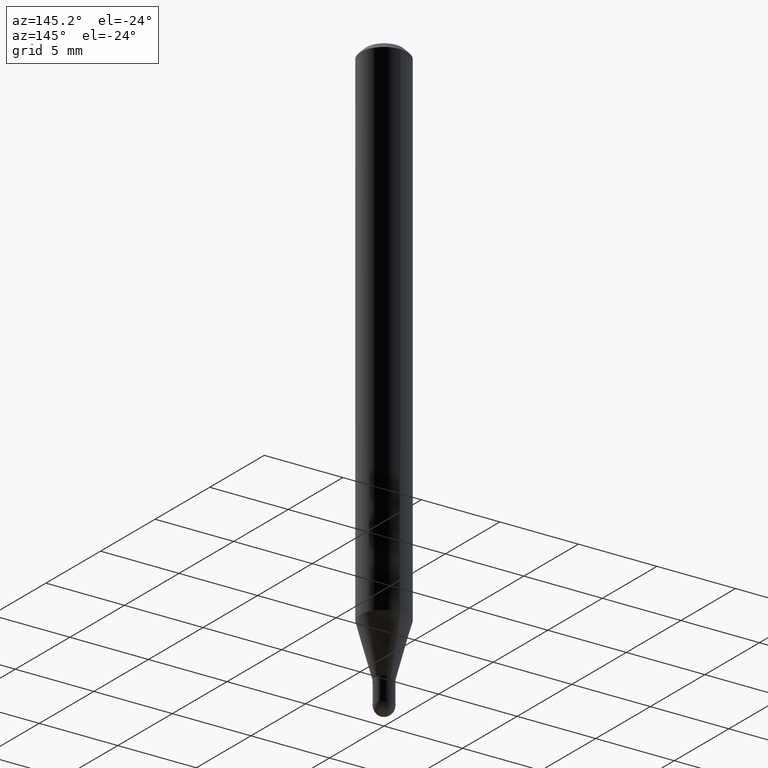
[diagram: clean part render]
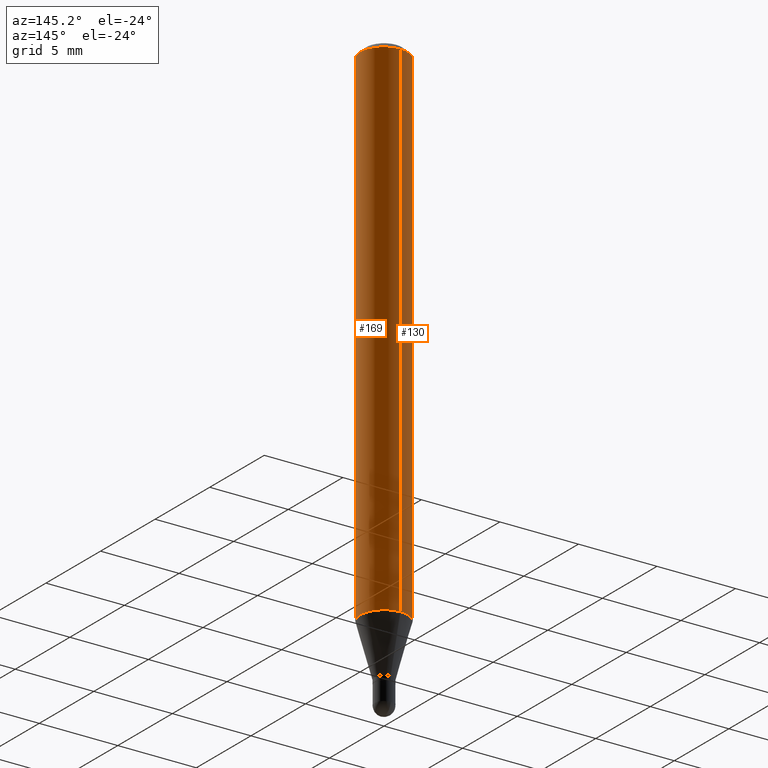
[diagram: same view with one multi-face feature highlighted, each face labeled with its STEP entity id]
A machine part, auxiliary view. The highlighted faces form ONE feature: a constant-radius fillet chain: 2 tangent blend faces with common blend radius 1.4999 mm. The faces share edges in the B-rep.
Their STEP definitions:
[1] entity #130 (Cylinder):
#8 = DIRECTION ( 'NONE',  ( -2.445525843005388911E-29, 3.491399658870209934E-15, 1.000000000000000000 ) ) ;
#45 = EDGE_CURVE ( 'NONE', #367, #158, #387, .T. ) ;
#46 = DIRECTION ( 'NONE',  ( -6.982962677686265922E-15, -1.000000000000000000, 3.505890868245046092E-15 ) ) ;
#75 = DIRECTION ( 'NONE',  ( -2.445525843005389191E-29, 3.491399658870209934E-15, 1.000000000000000000 ) ) ;
#77 = CYLINDRICAL_SURFACE ( 'NONE', #434, 0.05904999999999999832 ) ;
#78 = ORIENTED_EDGE ( 'NONE', *, *, #473, .F. ) ;
#88 = EDGE_CURVE ( 'NONE', #378, #367, #300, .T. ) ;
#119 = VECTOR ( 'NONE', #139, 39.37007874015748143 ) ;
#121 = DIRECTION ( 'NONE',  ( -6.982962677686265922E-15, -1.000000000000000000, 4.626330217890369336E-15 ) ) ;
#130 = ADVANCED_FACE ( 'NONE', ( #243 ), #77, .T. ) ;
#139 = DIRECTION ( 'NONE',  ( -2.445525843005389191E-29, 3.491399658870209934E-15, 1.000000000000000000 ) ) ;
#158 = VERTEX_POINT ( 'NONE', #356 ) ;
#161 = DIRECTION ( 'NONE',  ( -2.445525843005388911E-29, 3.491399658870209934E-15, 1.000000000000000000 ) ) ;
#177 = EDGE_CURVE ( 'NONE', #363, #158, #365, .T. ) ;
#213 = CARTESIAN_POINT ( 'NONE',  ( 4.195754854663702585E-16, 0.05904999999999549498, -1.282798798871683799 ) ) ;
#241 = VECTOR ( 'NONE', #75, 39.37007874015748143 ) ;
#243 = FACE_OUTER_BOUND ( 'NONE', #279, .T. ) ;
#254 = CARTESIAN_POINT ( 'NONE',  ( -4.123439461173428234E-16, -0.05905000000000449473, -1.282798798871683355 ) ) ;
#257 = ORIENTED_EDGE ( 'NONE', *, *, #45, .T. ) ;
#279 = EDGE_LOOP ( 'NONE', ( #78, #500, #257, #330 ) ) ;
#293 = CARTESIAN_POINT ( 'NONE',  ( 4.195754854663707023E-16, 0.05904999999999994975, -0.01500000000000029955 ) ) ;
#300 = CIRCLE ( 'NONE', #399, 0.05904999999999999832 ) ;
#325 = CARTESIAN_POINT ( 'NONE',  ( 3.668288764508105647E-31, -5.237099488305346678E-17, -0.01500000000000009139 ) ) ;
#330 = ORIENTED_EDGE ( 'NONE', *, *, #177, .F. ) ;
#356 = CARTESIAN_POINT ( 'NONE',  ( -4.123439461173736383E-16, -0.05905000000000005383, -0.01499999999999988495 ) ) ;
#363 = VERTEX_POINT ( 'NONE', #293 ) ;
#365 = CIRCLE ( 'NONE', #389, 0.05904999999999999832 ) ;
#367 = VERTEX_POINT ( 'NONE', #254 ) ;
#378 = VERTEX_POINT ( 'NONE', #213 ) ;
#387 = LINE ( 'NONE', #433, #241 ) ;
#388 = CARTESIAN_POINT ( 'NONE',  ( 4.195754854663390985E-16, 0.05904999999999999832, -2.061671498562858881E-16 ) ) ;
#389 = AXIS2_PLACEMENT_3D ( 'NONE', #325, #8, #46 ) ;
#399 = AXIS2_PLACEMENT_3D ( 'NONE', #431, #504, #121 ) ;
#403 = CARTESIAN_POINT ( 'NONE',  ( 0.000000000000000000, 0.000000000000000000, 0.000000000000000000 ) ) ;
#431 = CARTESIAN_POINT ( 'NONE',  ( 3.137117614016974443E-29, -4.478763288779711488E-15, -1.282798798871683577 ) ) ;
#433 = CARTESIAN_POINT ( 'NONE',  ( -4.123439461173739834E-16, -0.05904999999999999832, 2.061671498562858881E-16 ) ) ;
#434 = AXIS2_PLACEMENT_3D ( 'NONE', #403, #161, #481 ) ;
#473 = EDGE_CURVE ( 'NONE', #378, #363, #508, .T. ) ;
#481 = DIRECTION ( 'NONE',  ( -6.982962677686265922E-15, -1.000000000000000000, 3.491399658870209934E-15 ) ) ;
#500 = ORIENTED_EDGE ( 'NONE', *, *, #88, .T. ) ;
#504 = DIRECTION ( 'NONE',  ( -2.445525843005388911E-29, 3.491399658870209934E-15, 1.000000000000000000 ) ) ;
#508 = LINE ( 'NONE', #388, #119 ) ;
[2] entity #169 (Cylinder):
#17 = EDGE_LOOP ( 'NONE', ( #288, #414, #26, #112 ) ) ;
#26 = ORIENTED_EDGE ( 'NONE', *, *, #176, .F. ) ;
#41 = CYLINDRICAL_SURFACE ( 'NONE', #101, 0.05904999999999999832 ) ;
#45 = EDGE_CURVE ( 'NONE', #367, #158, #387, .T. ) ;
#48 = CARTESIAN_POINT ( 'NONE',  ( 0.000000000000000000, 0.000000000000000000, 0.000000000000000000 ) ) ;
#75 = DIRECTION ( 'NONE',  ( -2.445525843005389191E-29, 3.491399658870209934E-15, 1.000000000000000000 ) ) ;
#101 = AXIS2_PLACEMENT_3D ( 'NONE', #48, #275, #246 ) ;
#112 = ORIENTED_EDGE ( 'NONE', *, *, #45, .F. ) ;
#119 = VECTOR ( 'NONE', #139, 39.37007874015748143 ) ;
#139 = DIRECTION ( 'NONE',  ( -2.445525843005389191E-29, 3.491399658870209934E-15, 1.000000000000000000 ) ) ;
#141 = AXIS2_PLACEMENT_3D ( 'NONE', #446, #196, #397 ) ;
#153 = DIRECTION ( 'NONE',  ( -2.445525843005388911E-29, 3.491399658870209934E-15, 1.000000000000000000 ) ) ;
#158 = VERTEX_POINT ( 'NONE', #356 ) ;
#169 = ADVANCED_FACE ( 'NONE', ( #240 ), #41, .T. ) ;
#176 = EDGE_CURVE ( 'NONE', #158, #363, #267, .T. ) ;
#179 = EDGE_CURVE ( 'NONE', #367, #378, #444, .T. ) ;
#196 = DIRECTION ( 'NONE',  ( -2.445525843005388911E-29, 3.491399658870209934E-15, 1.000000000000000000 ) ) ;
#213 = CARTESIAN_POINT ( 'NONE',  ( 4.195754854663702585E-16, 0.05904999999999549498, -1.282798798871683799 ) ) ;
#240 = FACE_OUTER_BOUND ( 'NONE', #17, .T. ) ;
#241 = VECTOR ( 'NONE', #75, 39.37007874015748143 ) ;
#246 = DIRECTION ( 'NONE',  ( -6.982962677686265922E-15, -1.000000000000000000, 3.491399658870209934E-15 ) ) ;
#254 = CARTESIAN_POINT ( 'NONE',  ( -4.123439461173428234E-16, -0.05905000000000449473, -1.282798798871683355 ) ) ;
#260 = AXIS2_PLACEMENT_3D ( 'NONE', #395, #153, #286 ) ;
#267 = CIRCLE ( 'NONE', #141, 0.05904999999999999832 ) ;
#275 = DIRECTION ( 'NONE',  ( -2.445525843005388911E-29, 3.491399658870209934E-15, 1.000000000000000000 ) ) ;
#286 = DIRECTION ( 'NONE',  ( -6.982962677686265922E-15, -1.000000000000000000, 4.626330217890369336E-15 ) ) ;
#288 = ORIENTED_EDGE ( 'NONE', *, *, #179, .T. ) ;
#293 = CARTESIAN_POINT ( 'NONE',  ( 4.195754854663707023E-16, 0.05904999999999994975, -0.01500000000000029955 ) ) ;
#356 = CARTESIAN_POINT ( 'NONE',  ( -4.123439461173736383E-16, -0.05905000000000005383, -0.01499999999999988495 ) ) ;
#363 = VERTEX_POINT ( 'NONE', #293 ) ;
#367 = VERTEX_POINT ( 'NONE', #254 ) ;
#378 = VERTEX_POINT ( 'NONE', #213 ) ;
#387 = LINE ( 'NONE', #433, #241 ) ;
#388 = CARTESIAN_POINT ( 'NONE',  ( 4.195754854663390985E-16, 0.05904999999999999832, -2.061671498562858881E-16 ) ) ;
#395 = CARTESIAN_POINT ( 'NONE',  ( 3.137117614016974443E-29, -4.478763288779711488E-15, -1.282798798871683577 ) ) ;
#397 = DIRECTION ( 'NONE',  ( -6.982962677686265922E-15, -1.000000000000000000, 3.505890868245046092E-15 ) ) ;
#414 = ORIENTED_EDGE ( 'NONE', *, *, #473, .T. ) ;
#433 = CARTESIAN_POINT ( 'NONE',  ( -4.123439461173739834E-16, -0.05904999999999999832, 2.061671498562858881E-16 ) ) ;
#444 = CIRCLE ( 'NONE', #260, 0.05904999999999999832 ) ;
#446 = CARTESIAN_POINT ( 'NONE',  ( 3.668288764508105647E-31, -5.237099488305346678E-17, -0.01500000000000009139 ) ) ;
#473 = EDGE_CURVE ( 'NONE', #378, #363, #508, .T. ) ;
#508 = LINE ( 'NONE', #388, #119 ) ;